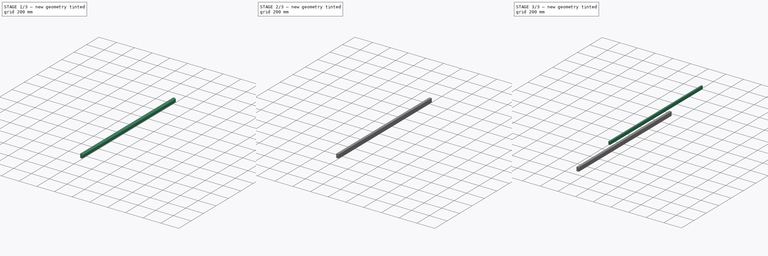
[diagram: build sequence overview — one tinted view per stage of 3, left to right]
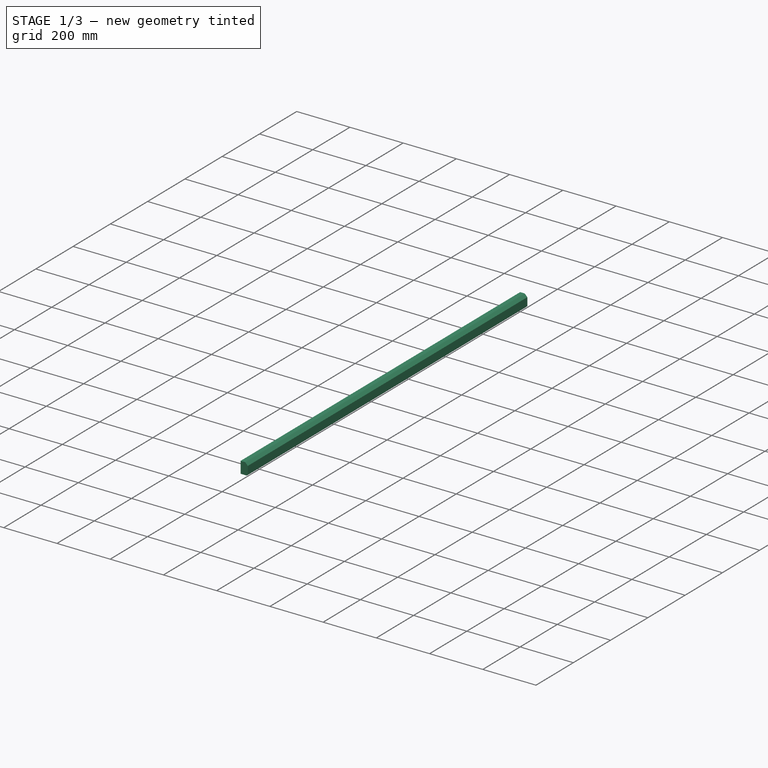
[diagram: stage 1 of 3 — iso view after this stage's code; geometry added in this stage tinted green]
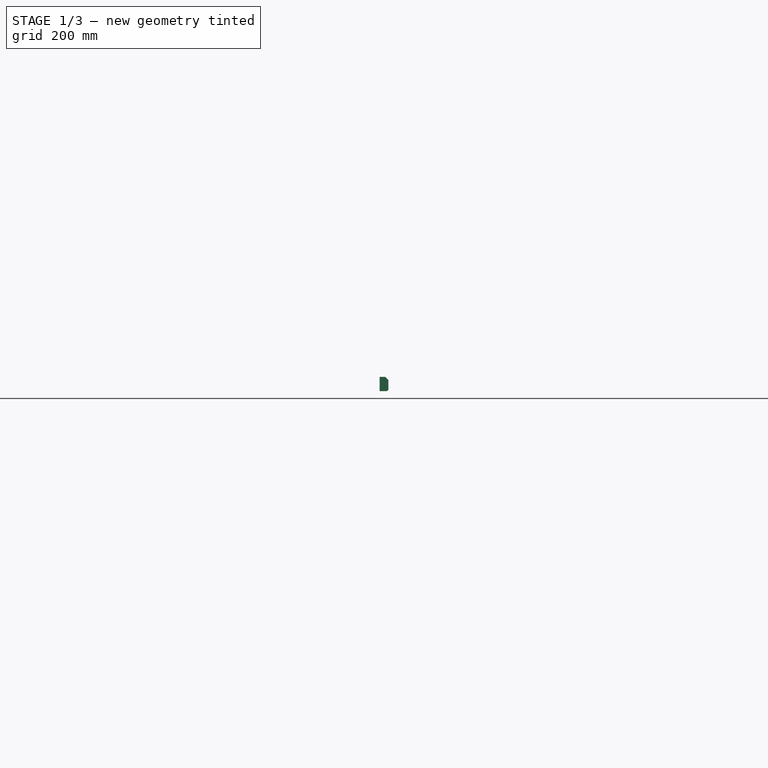
[diagram: stage 1 of 3 — front view after this stage's code; geometry added in this stage tinted green]
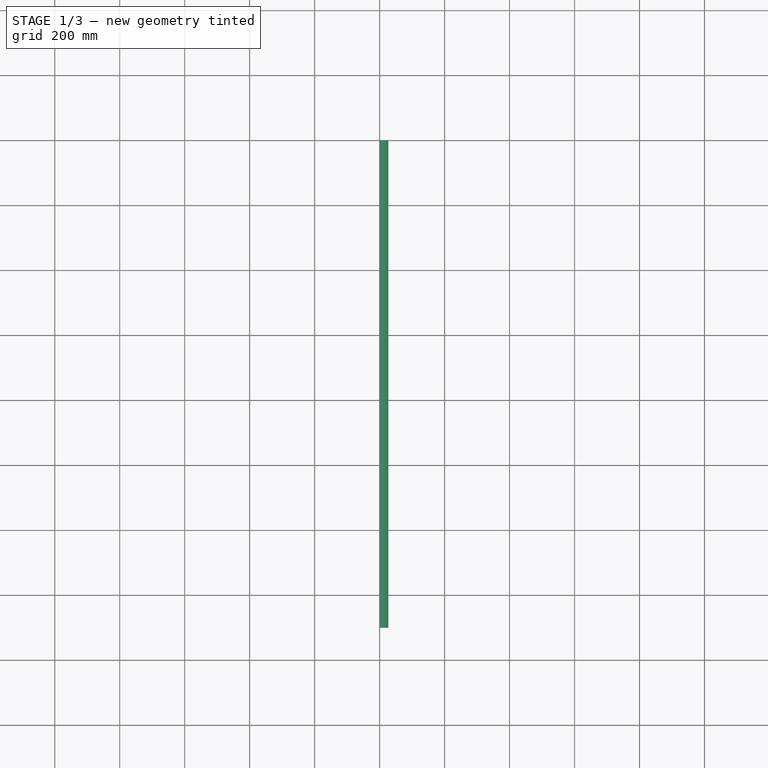
[diagram: stage 1 of 3 — top view after this stage's code; geometry added in this stage tinted green]
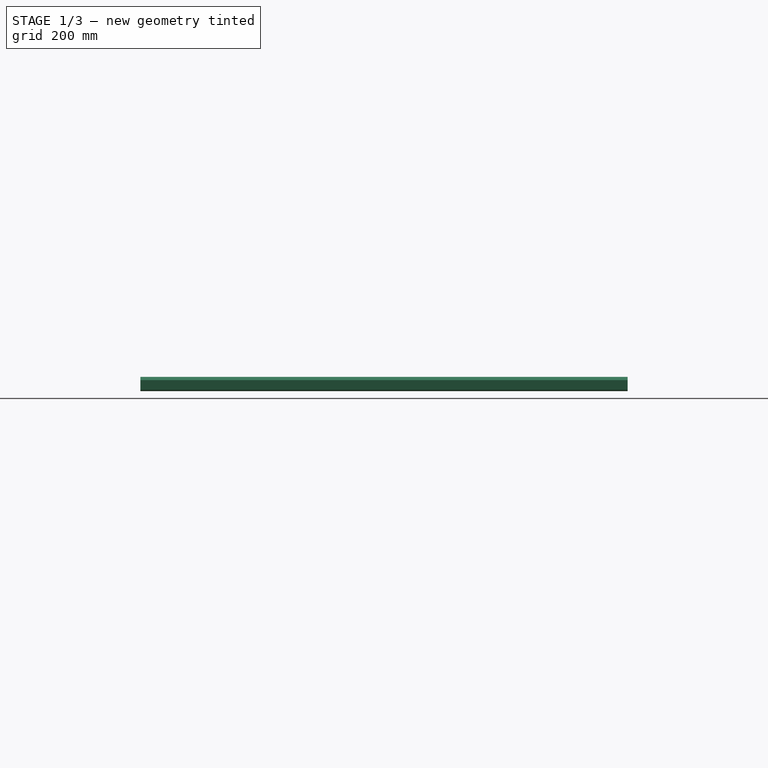
[diagram: stage 1 of 3 — right view after this stage's code; geometry added in this stage tinted green]
FCSTD DOCUMENT  (FreeCAD 1.0R39109 (Git))
Label: Tasseaux
License: All rights reserved
LicenseURL: http://en.wikipedia.org/wiki/All_rights_reserved
objects: PartDesign::Body×6, App::Part×6, PartDesign::CoordinateSystem×5, Sketcher::SketchObject×4, PartDesign::Pad×4, PartDesign::FeatureBase×2, PartDesign::Chamfer×2
note: 41 computed .brp shape members not serialized (recipe doc carries the construction recipe); baked Part::Feature solids carry a one-line shape summary decoded from their .brp

FEATURE [Sketcher::SketchObject] Sketch004
  ArcFitTolerance = 1e-06
  AttachmentSupport = -> [XZ_Plane008]
  FullyConstrained = true
  MakeInternals = false
  MapMode = 5
  Placement = pos=(0,0,0) rot=(1,0,0;1.5708rad)
  sketch-geometry (4):
    g0: LineSegment StartX=0 StartY=0 StartZ=0 EndX=27 EndY=0 EndZ=0
    g1: LineSegment StartX=27 StartY=0 StartZ=0 EndX=27 EndY=44 EndZ=0
    g2: LineSegment StartX=27 StartY=44 StartZ=0 EndX=0 EndY=44 EndZ=0
    g3: LineSegment StartX=0 StartY=44 StartZ=0 EndX=0 EndY=0 EndZ=0
  constraints (11):
    c: Coincident(g0,g1)
    c: Coincident(g1,g2)
    c: Coincident(g2,g3)
    c: Coincident(g3,g0)
    c: Horizontal(g0)
    c: Horizontal(g2)
    c: Vertical(g1)
    c: Vertical(g3)
    c: Distance(g1,g3) = 27
    c: Distance(g0,g2) = 44
    c: Coincident(g0,g-1)
FEATURE [PartDesign::Pad] Pad004
  Direction = (0,-1,2e-16)
  Length = 1500
  Length2 = 10
  Placement = pos=(0,0,0) rot=(1,0,0;1.5708rad)
  Profile = -> Sketch004
  ReferenceAxis = -> Sketch004 [N_Axis]
  Refine = true
  Suppressed = false
  Type = 0
FEATURE [PartDesign::Body] Body009  label="Traverse"
  AllowCompound = false
  Group = -> [Sketch007,Pad006]
  Origin = -> Origin018
  Placement = pos=(-191,750,-59) rot=(0,0,1;0rad)
  Tip = -> Pad006
FEATURE [App::Part] TraverseFrontale_27x045  label="Traverse_27x44"
  Group = -> [LCS_Origin004,Body009]
  Origin = -> Origin017
FEATURE [PartDesign::Chamfer] Chamfer
  Angle = 45
  Base = -> Pad004 [Edge5]
  BaseFeature = -> Pad004
  ChamferType = 0
  FlipDirection = false
  Placement = pos=(0,0,0) rot=(1,0,0;1.5708rad)
  Refine = true
  Size = 10
  Size2 = 1
  SupportTransform = false
  Suppressed = false
  UseAllEdges = false
FEATURE [PartDesign::Chamfer] Chamfer001
  Angle = 45
  Base = -> Chamfer [Edge3]
  BaseFeature = -> Chamfer
  ChamferType = 0
  FlipDirection = false
  Placement = pos=(0,0,0) rot=(1,0,0;1.5708rad)
  Refine = true
  Size = 4
  Size2 = 1
  SupportTransform = false
  Suppressed = false
  UseAllEdges = false
FEATURE [PartDesign::Body] Body004  label="TraverseFrontale"
  AllowCompound = false
  Group = -> [Sketch004,Pad004,Chamfer,Chamfer001]
  Origin = -> Origin008
  Placement = pos=(-191,750,-59) rot=(0,0,1;0rad)
  Tip = -> Chamfer001
FEATURE [App::Part] TraverseFrontale_27x44
  Group = -> [LCS_Origin,Body004]
  Origin = -> Origin
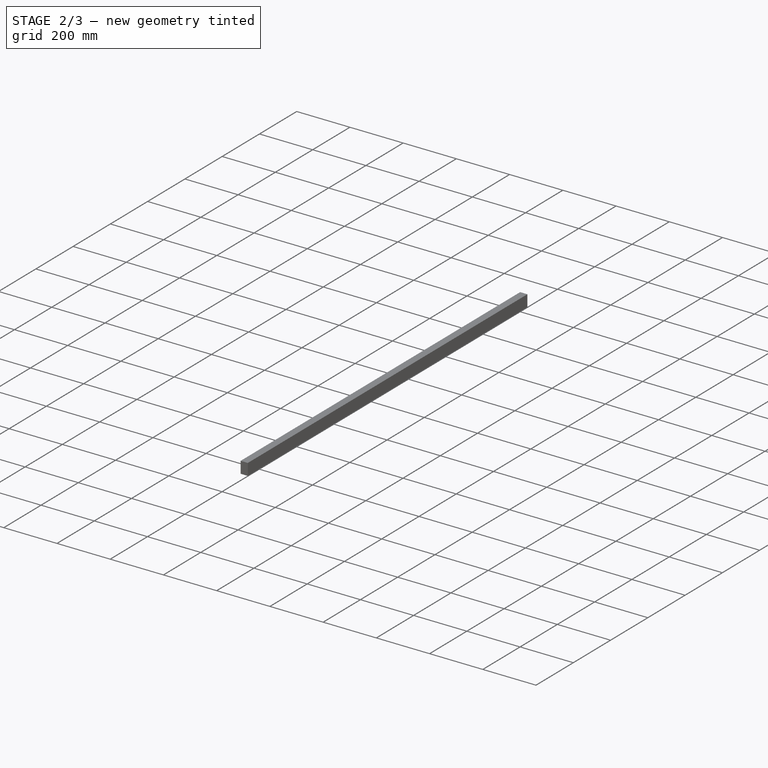
[diagram: stage 2 of 3 — iso view after this stage's code; geometry added in this stage tinted green]
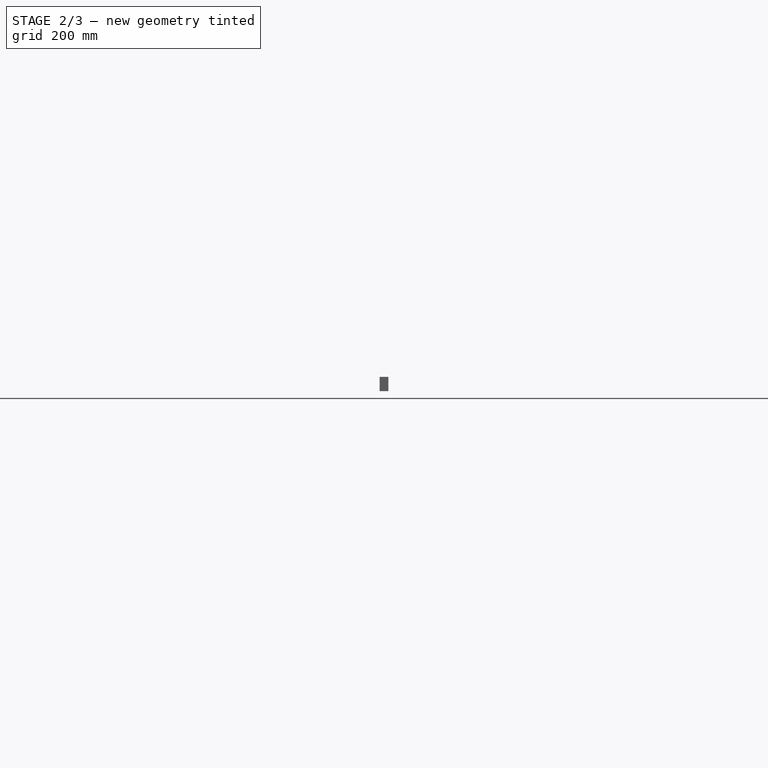
[diagram: stage 2 of 3 — front view after this stage's code; geometry added in this stage tinted green]
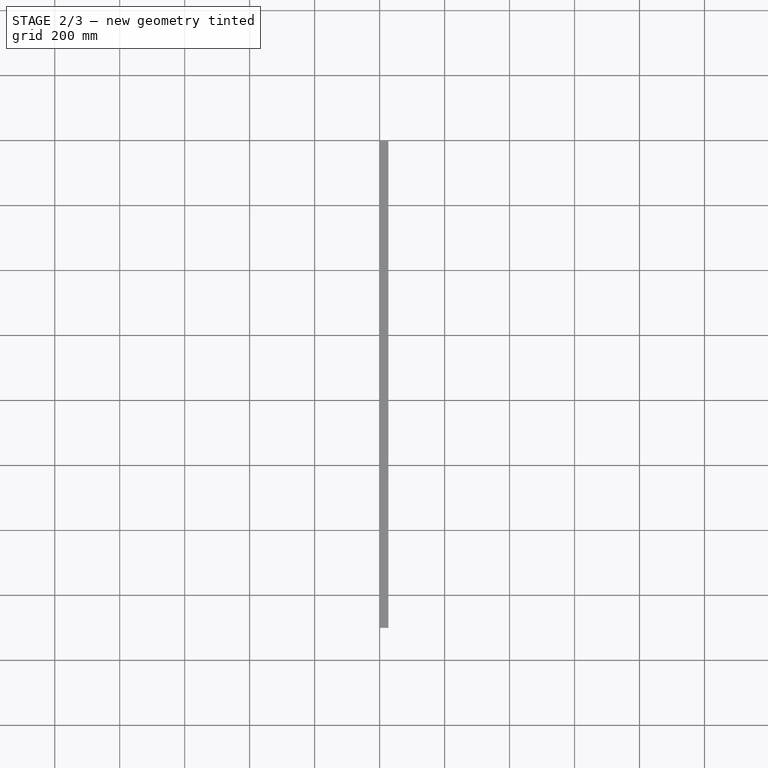
[diagram: stage 2 of 3 — top view after this stage's code; geometry added in this stage tinted green]
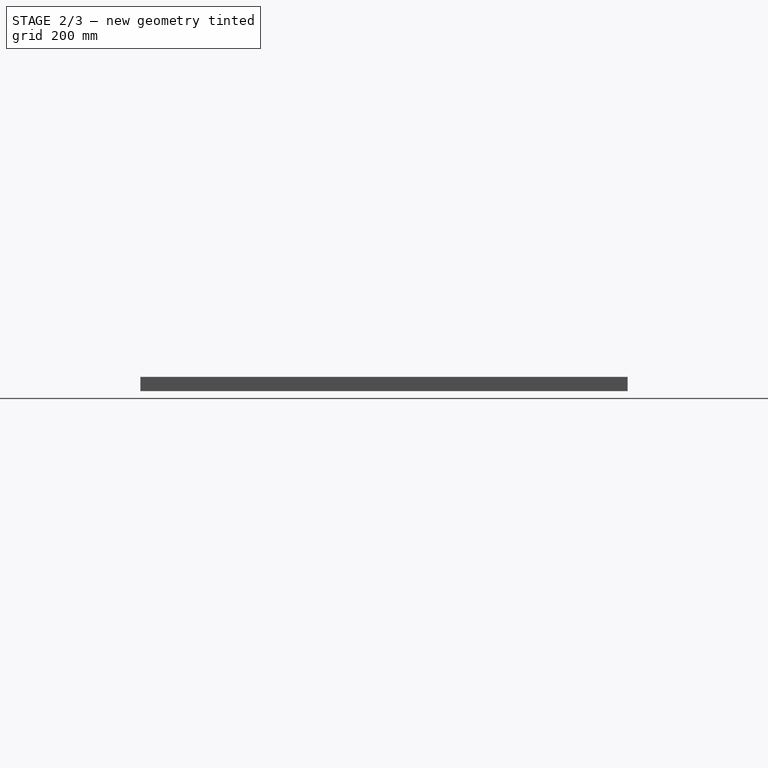
[diagram: stage 2 of 3 — right view after this stage's code; geometry added in this stage tinted green]
FEATURE [PartDesign::Body] Body007  label="TraversePlateauArrière001"
  AllowCompound = false
  Group = -> [Clone002]
  Origin = -> Origin011
  Placement = pos=(158,0,0) rot=(0,0,1;0rad)
  Tip = -> Clone002
FEATURE [PartDesign::CoordinateSystem] LCS_Origin
  AttacherType = Attacher::AttachEngine3D
  AttachmentSupport = -> [X_Axis]
  MapMode = 2
FEATURE [PartDesign::CoordinateSystem] LCS_Origin001
  AttacherType = Attacher::AttachEngine3D
  AttachmentSupport = -> [X_Axis012]
  MapMode = 2
FEATURE [App::Part] TraverseFrontale_18x340  label="TraverseFrontale_18x34"
  Group = -> [LCS_Origin001,Body005]
  Origin = -> Origin012
FEATURE [PartDesign::CoordinateSystem] LCS_Origin002
  AttacherType = Attacher::AttachEngine3D
  AttachmentSupport = -> [X_Axis013]
  MapMode = 2
FEATURE [App::Part] TraversePlateauJeu_18x340  label="TraversePlateauJeu_18x34"
  Group = -> [LCS_Origin002,Body006]
  Origin = -> Origin013
FEATURE [PartDesign::CoordinateSystem] LCS_Origin003
  AttacherType = Attacher::AttachEngine3D
  AttachmentSupport = -> [X_Axis014]
  MapMode = 2
FEATURE [App::Part] TraversePlateauArri__re  label="TraversePlateauArrière_18x34"
  Group = -> [LCS_Origin003,Body007]
  Origin = -> Origin014
FEATURE [Sketcher::SketchObject] Sketch006
  ArcFitTolerance = 1e-06
  AttachmentSupport = -> [XZ_Plane016]
  FullyConstrained = true
  MakeInternals = false
  MapMode = 5
  Placement = pos=(0,0,0) rot=(1,0,0;1.5708rad)
  sketch-geometry (4):
    g0: LineSegment StartX=0 StartY=0 StartZ=0 EndX=27 EndY=0 EndZ=0
    g1: LineSegment StartX=27 StartY=0 StartZ=0 EndX=27 EndY=44 EndZ=0
    g2: LineSegment StartX=27 StartY=44 StartZ=0 EndX=0 EndY=44 EndZ=0
    g3: LineSegment StartX=0 StartY=44 StartZ=0 EndX=0 EndY=0 EndZ=0
  constraints (11):
    c: Coincident(g0,g1)
    c: Coincident(g1,g2)
    c: Coincident(g2,g3)
    c: Coincident(g3,g0)
    c: Horizontal(g0)
    c: Horizontal(g2)
    c: Vertical(g1)
    c: Vertical(g3)
    c: Distance(g1,g3) = 27
    c: Distance(g0,g2) = 44
    c: Coincident(g0,g-1)
FEATURE [PartDesign::Pad] Pad005
  Direction = (0,-1,2e-16)
  Length = 450
  Length2 = 10
  Placement = pos=(0,0,0) rot=(1,0,0;1.5708rad)
  Profile = -> Sketch006
  ReferenceAxis = -> Sketch006 [N_Axis]
  Refine = true
  Suppressed = false
  Type = 0
FEATURE [PartDesign::Body] Body008  label="LongeronLateral"
  AllowCompound = false
  Group = -> [Sketch006,Pad005]
  Origin = -> Origin016
  Placement = pos=(-191,750,-59) rot=(0,0,1;0rad)
  Tip = -> Pad005
FEATURE [App::Part] Part  label="LongeronLateral_27x44"
  Group = -> [Body008]
  Origin = -> Origin015
FEATURE [PartDesign::CoordinateSystem] LCS_Origin004
  AttacherType = Attacher::AttachEngine3D
  AttachmentSupport = -> [X_Axis017]
  MapMode = 2
FEATURE [Sketcher::SketchObject] Sketch007
  ArcFitTolerance = 1e-06
  AttachmentSupport = -> [XZ_Plane018]
  FullyConstrained = true
  MakeInternals = false
  MapMode = 5
  Placement = pos=(0,0,0) rot=(1,0,0;1.5708rad)
  sketch-geometry (4):
    g0: LineSegment StartX=0 StartY=0 StartZ=0 EndX=27 EndY=0 EndZ=0
    g1: LineSegment StartX=27 StartY=0 StartZ=0 EndX=27 EndY=44 EndZ=0
    g2: LineSegment StartX=27 StartY=44 StartZ=0 EndX=0 EndY=44 EndZ=0
    g3: LineSegment StartX=0 StartY=44 StartZ=0 EndX=0 EndY=0 EndZ=0
  constraints (11):
    c: Coincident(g0,g1)
    c: Coincident(g1,g2)
    c: Coincident(g2,g3)
    c: Coincident(g3,g0)
    c: Horizontal(g0)
    c: Horizontal(g2)
    c: Vertical(g1)
    c: Vertical(g3)
    c: Distance(g1,g3) = 27
    c: Distance(g0,g2) = 44
    c: Coincident(g0,g-1)
FEATURE [PartDesign::Pad] Pad006
  Direction = (0,-1,2e-16)
  Length = 1500
  Length2 = 10
  Placement = pos=(0,0,0) rot=(1,0,0;1.5708rad)
  Profile = -> Sketch007
  ReferenceAxis = -> Sketch007 [N_Axis]
  Refine = true
  Suppressed = false
  Type = 0
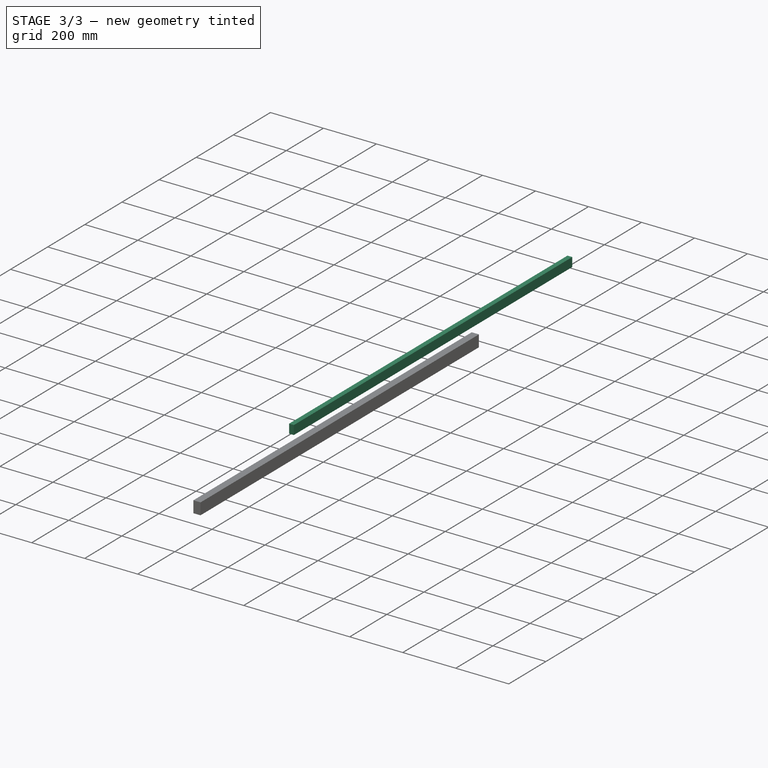
[diagram: stage 3 of 3 — iso view after this stage's code; geometry added in this stage tinted green]
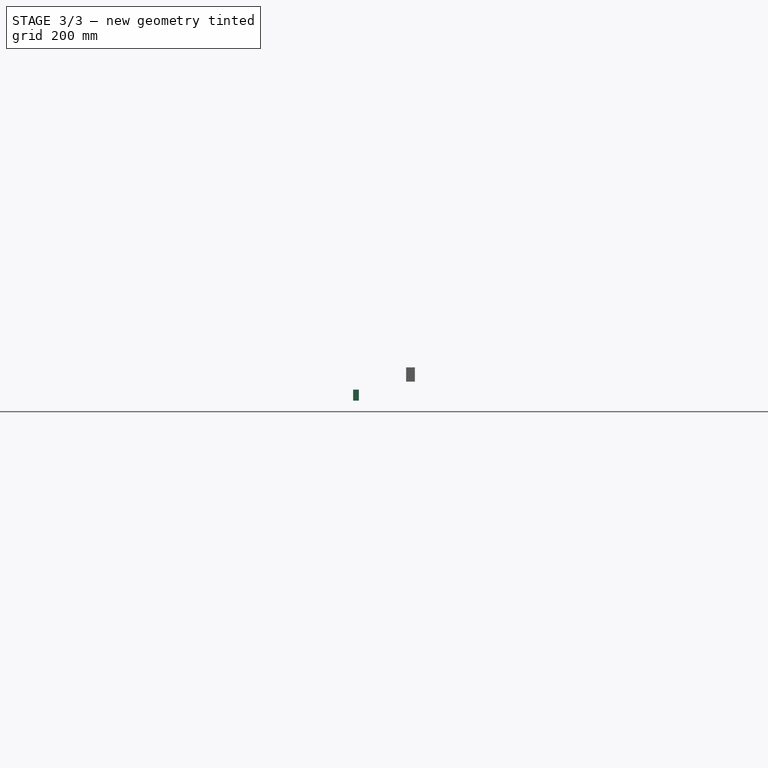
[diagram: stage 3 of 3 — front view after this stage's code; geometry added in this stage tinted green]
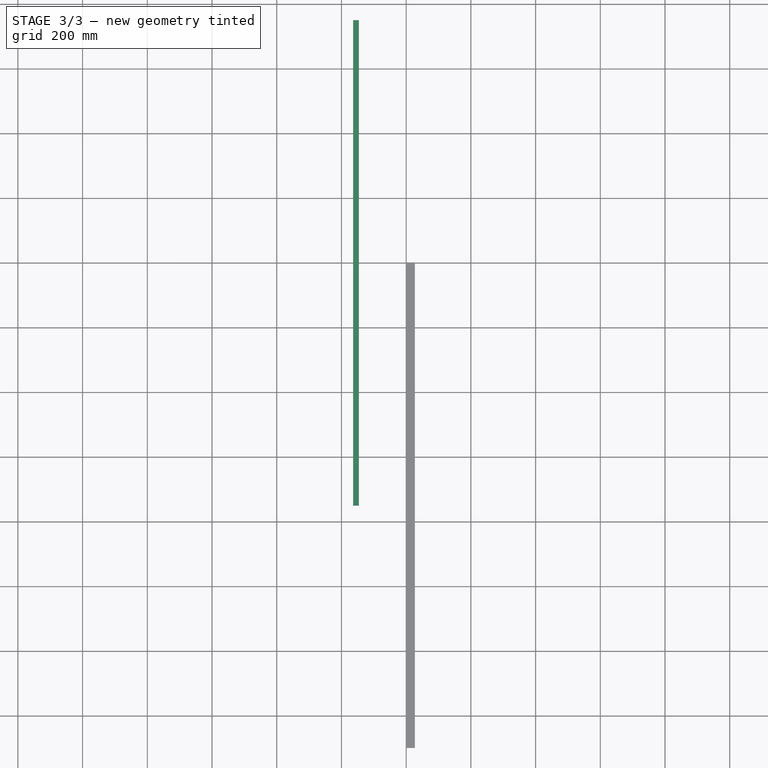
[diagram: stage 3 of 3 — top view after this stage's code; geometry added in this stage tinted green]
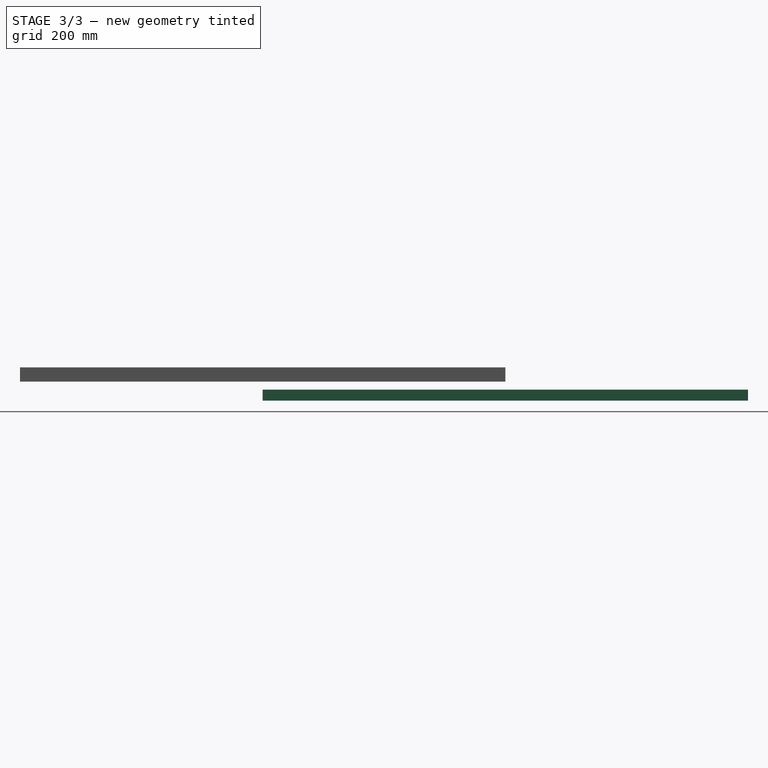
[diagram: stage 3 of 3 — right view after this stage's code; geometry added in this stage tinted green]
FEATURE [Sketcher::SketchObject] Sketch005
  ArcFitTolerance = 1e-06
  AttachmentSupport = -> [XZ_Plane009]
  FullyConstrained = true
  MakeInternals = false
  MapMode = 5
  Placement = pos=(0,0,0) rot=(1,0,0;1.5708rad)
  sketch-geometry (4):
    g0: LineSegment StartX=0 StartY=0 StartZ=0 EndX=0 EndY=34 EndZ=0
    g1: LineSegment StartX=0 StartY=34 StartZ=0 EndX=-18 EndY=34 EndZ=0
    g2: LineSegment StartX=-18 StartY=34 StartZ=0 EndX=-18 EndY=0 EndZ=0
    g3: LineSegment StartX=-18 StartY=0 StartZ=0 EndX=0 EndY=0 EndZ=0
  constraints (11):
    c: Coincident(g0,g1)
    c: Coincident(g1,g2)
    c: Coincident(g2,g3)
    c: Coincident(g3,g0)
    c: Vertical(g0)
    c: Vertical(g2)
    c: Horizontal(g1)
    c: Horizontal(g3)
    c: Distance(g0,g2) = 18
    c: Distance(g1,g3) = 34
    c: Coincident(g0,g-1)
FEATURE [PartDesign::Pad] Pad003
  Direction = (0,-1,2e-16)
  Length = 1500
  Length2 = 10
  Placement = pos=(0,0,0) rot=(1,0,0;1.5708rad)
  Profile = -> Sketch005
  ReferenceAxis = -> Sketch005 [N_Axis]
  Refine = true
  Suppressed = false
  Type = 0
FEATURE [PartDesign::Body] Body005  label="TraverseFrontale001"
  AllowCompound = false
  Group = -> [Sketch005,Pad003]
  Origin = -> Origin009
  Placement = pos=(-146,750,-59) rot=(0,0,1;0rad)
  Tip = -> Pad003
FEATURE [PartDesign::FeatureBase] Clone001
  BaseFeature = -> Body005
  Placement = pos=(-146,750,-59) rot=(0,0,1;0rad)
  Suppressed = false
FEATURE [PartDesign::Body] Body006  label="TraversePlateauJeu"
  AllowCompound = false
  Group = -> [Clone001]
  Origin = -> Origin010
  Placement = pos=(154,0,0) rot=(0,0,1;0rad)
  Tip = -> Clone001
FEATURE [PartDesign::FeatureBase] Clone002
  BaseFeature = -> Body005
  Placement = pos=(-146,750,-59) rot=(0,0,1;0rad)
  Suppressed = false
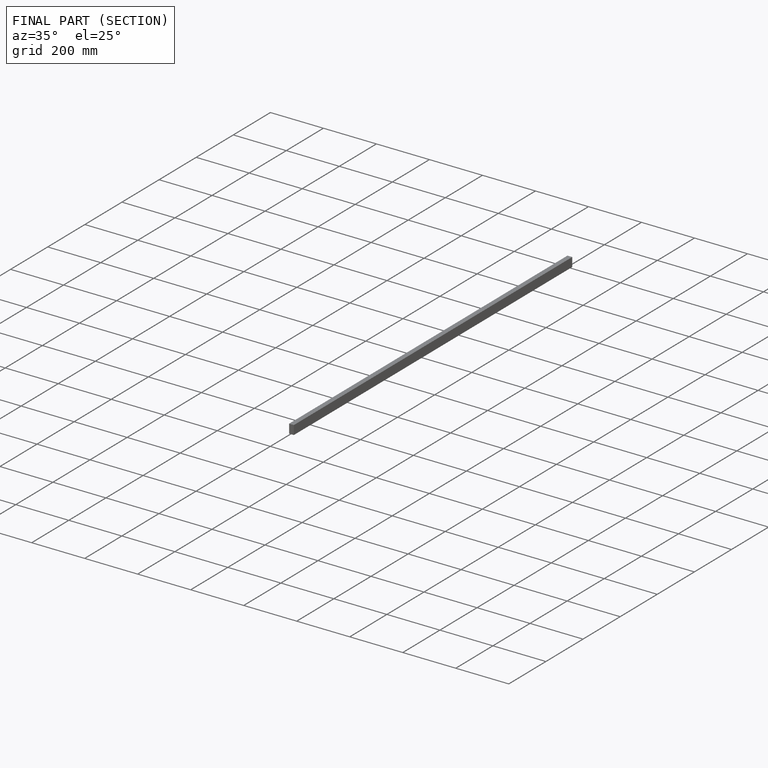
[diagram: finished part — half-section view (interior)]
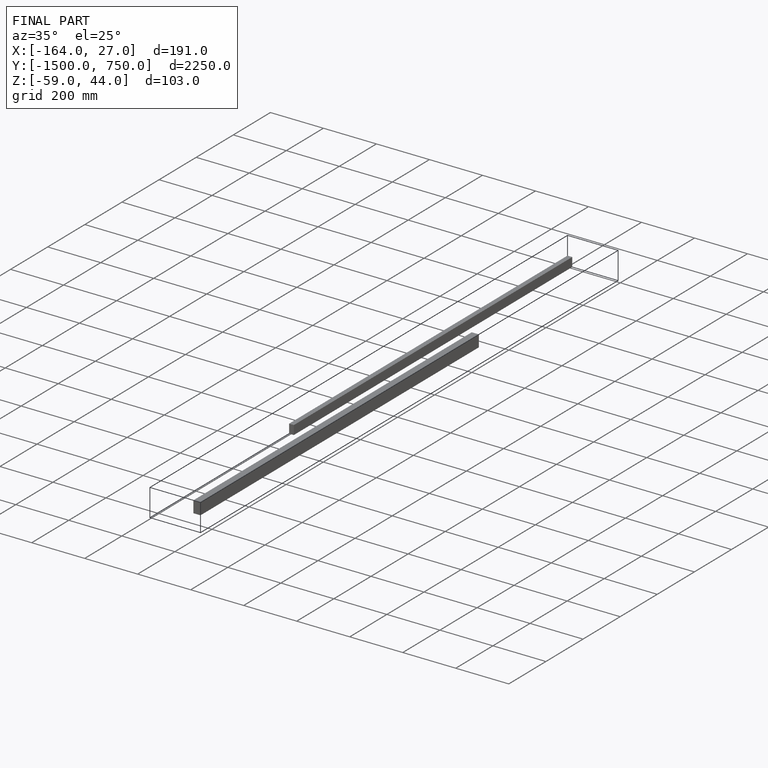
[diagram: finished part — iso view with bounding-box wireframe]
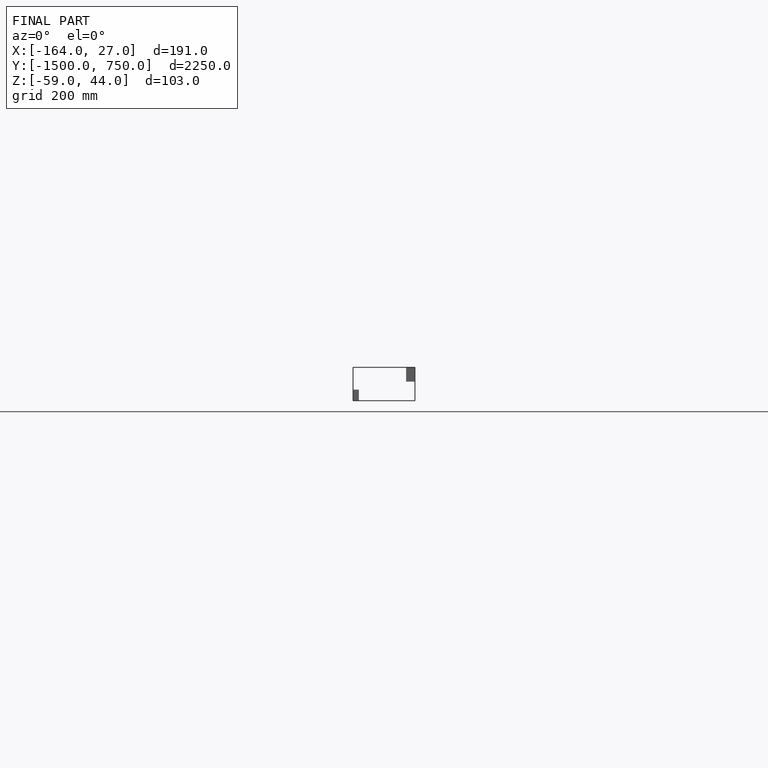
[diagram: finished part — front view with bounding-box wireframe]
